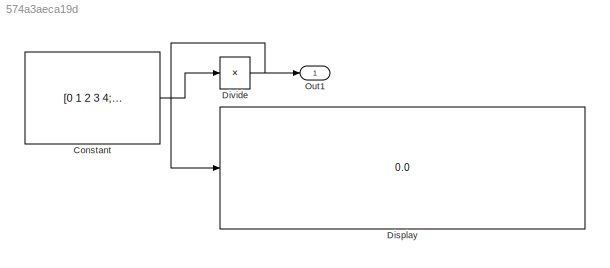
MODEL slx_574a3aeca19d
KIND model
CONFIG AbsTol = auto
CONFIG FixedStep = 0.2
CONFIG MaxStep = .2
CONFIG MinStep = auto
CONFIG RelTol = 1e-3
CONFIG SampleTimeConstraint = Unconstrained
CONFIG Solver = FixedStepDiscrete
CONFIG SolverMode = Auto
CONFIG SolverName = FixedStepDiscrete
CONFIG StartTime = 0.0
CONFIG StopTime = 19.8
WORKSPACE source: MAT-file member
WORKSPACE Var = 0
BLOCK [Constant] Constant
  Value = [0 1 2 3 4;3 0 1 4 2;3 2 0 2 4 ; 1 3 4 0 1 ; 2 3 1 2 0]
BLOCK [Display] Display
  Decimation = 1
  Ports = [1]
BLOCK [Product] Divide
  InputSameDT = off
  Inputs = /
  Multiplication = Matrix(*)
  OutDataTypeStr = Inherit: Inherit via internal rule
  Ports = [1, 1]
  RndMeth = Floor
  SaturateOnIntegerOverflow = off
BLOCK [Outport] Out1
  IconDisplay = Port number
LINE Constant:1 -> Divide:1
NET Divide:1 -> Display:1, Out1:1
note: NET lines group one-source signal fan-out (src -> all destinations, sorted); 1:1 wires keep LINE
